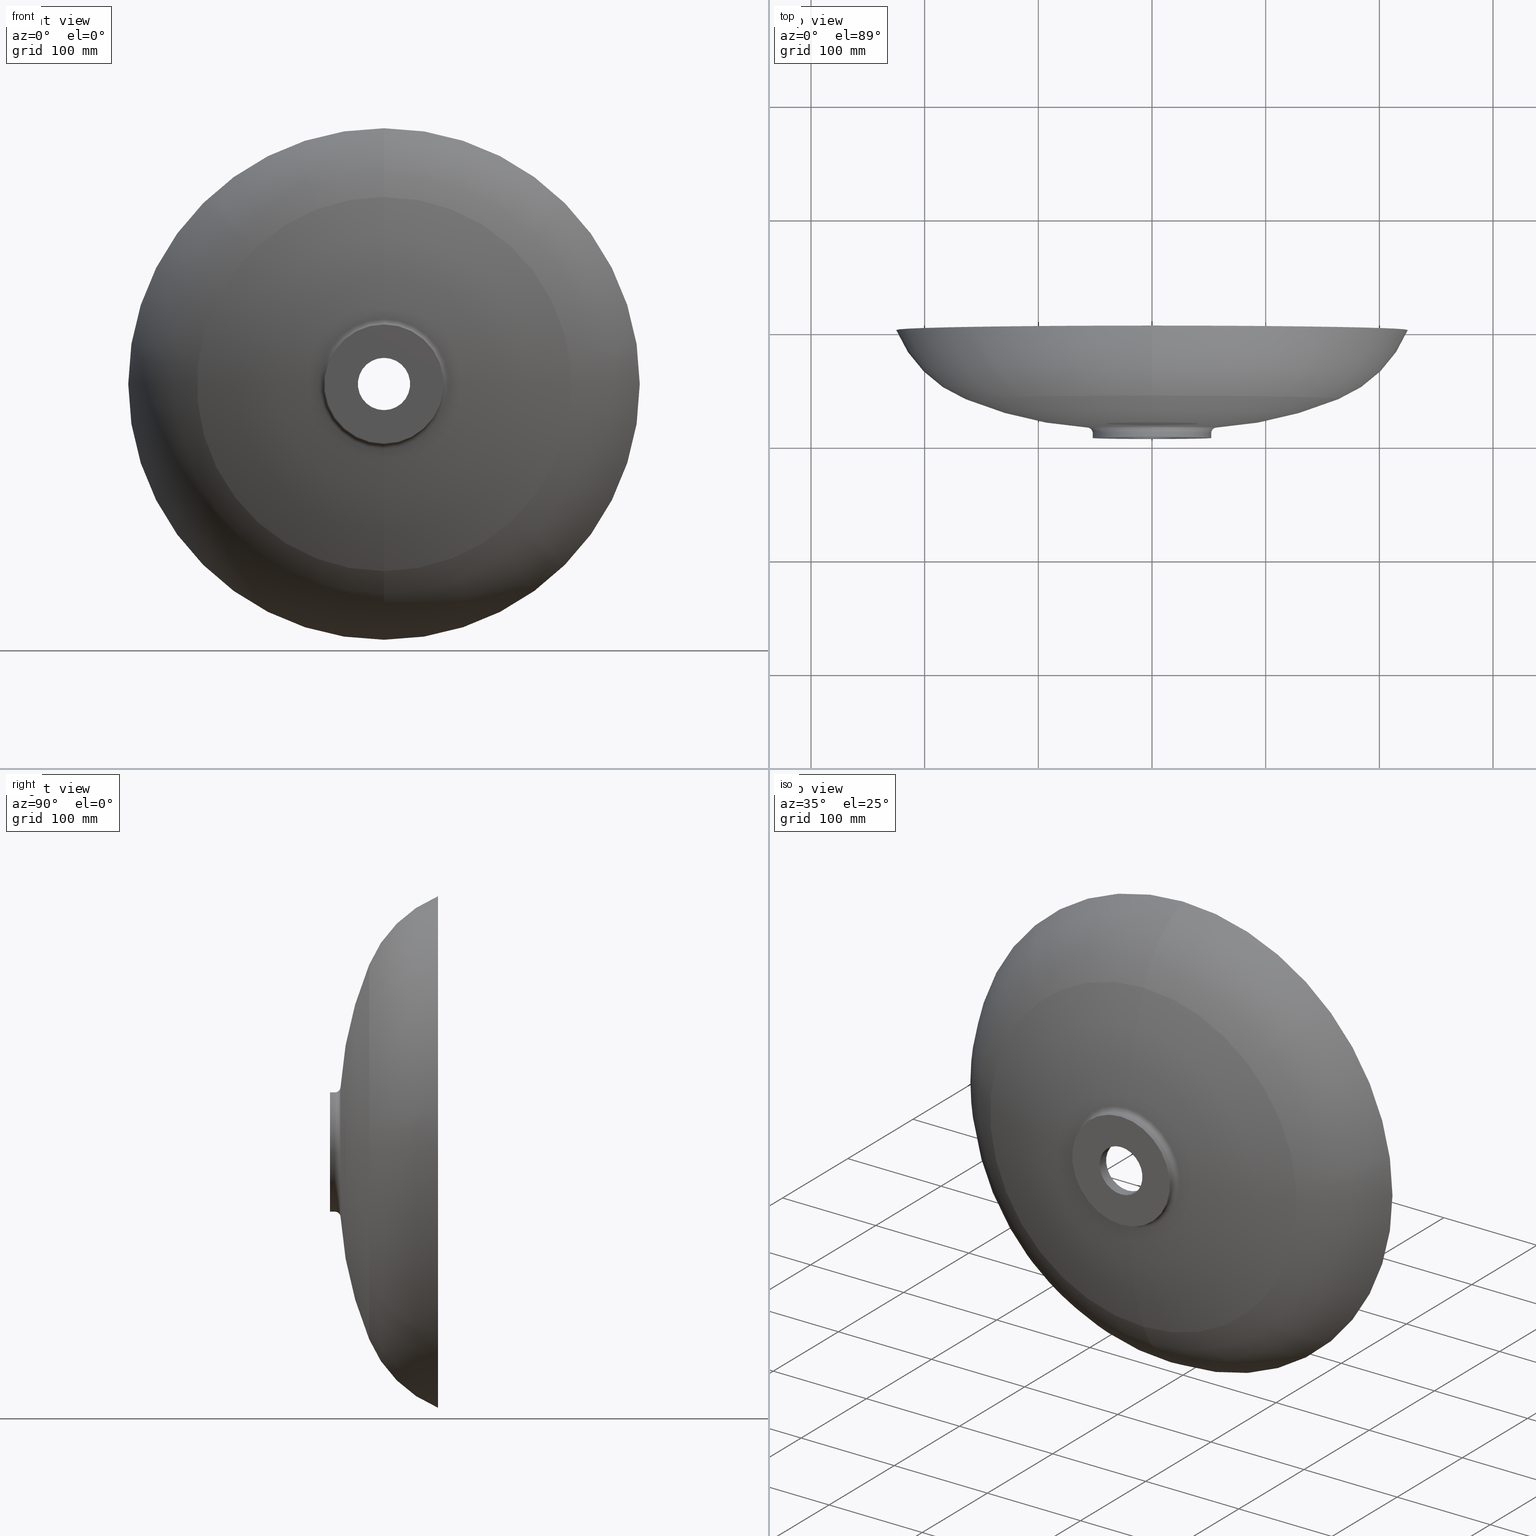
[diagram: canonical four-view strip — front | top / right | iso, engineering-drawing reading convention]
A machine part, canonical four-view strip (front | top / right | iso — engineering-drawing reading convention). The complete STEP part file that produces these views, byte-faithful:
ISO-10303-21;
HEADER;
FILE_DESCRIPTION (( 'STEP AP214' ),
    '1' );
FILE_NAME ('Z820-1SO_Egeria Soft.STEP',
    '2019-02-20T11:03:33',
    ( 'Admin' ),
    ( '' ),
    'SwSTEP 2.0',
    'SolidWorks 2019',
    '' );
FILE_SCHEMA (( 'AUTOMOTIVE_DESIGN' ));
ENDSEC;

DATA;
#1 = FACE_OUTER_BOUND ( 'NONE', #484, .T. ) ;
#2 =( NAMED_UNIT ( * ) SI_UNIT ( $, .STERADIAN. ) SOLID_ANGLE_UNIT ( ) );
#3 = FACE_BOUND ( 'NONE', #118, .T. ) ;
#4 = TOROIDAL_SURFACE ( 'NONE', #234, 121.9101096011546872, 111.4495278588973406 ) ;
#5 = AXIS2_PLACEMENT_3D ( 'NONE', #174, #145, #434 ) ;
#6 =( LENGTH_UNIT ( ) NAMED_UNIT ( * ) SI_UNIT ( .MILLI., .METRE. ) );
#7 = CARTESIAN_POINT ( 'NONE',  ( 4.268525816630462138E-14, 42.34940091105409010, -121.9101096011546872 ) ) ;
#8 = DIRECTION ( 'NONE',  ( -1.000000000000000000, 0.0000000000000000000, 0.0000000000000000000 ) ) ;
#9 = LINE ( 'NONE', #530, #44 ) ;
#10 = ADVANCED_FACE ( 'NONE', ( #444 ), #41, .F. ) ;
#11 = AXIS2_PLACEMENT_3D ( 'NONE', #491, #8, #437 ) ;
#12 = DIRECTION ( 'NONE',  ( 0.0000000000000000000, 0.0000000000000000000, 1.000000000000000000 ) ) ;
#13 = AXIS2_PLACEMENT_3D ( 'NONE', #490, #534, #459 ) ;
#14 = ORIENTED_EDGE ( 'NONE', *, *, #477, .T. ) ;
#15 = SURFACE_STYLE_USAGE ( .BOTH. , #536 ) ;
#16 = ADVANCED_FACE ( 'NONE', ( #198 ), #508, .F. ) ;
#17 = DIRECTION ( 'NONE',  ( -0.0000000000000000000, 1.000000000000000000, -0.0000000000000000000 ) ) ;
#18 = DIRECTION ( 'NONE',  ( 1.000000000000000000, 0.0000000000000000000, 1.224646799147353207E-16 ) ) ;
#19 = PRODUCT ( 'Z820-1SO_Egeria Soft', 'Z820-1SO_Egeria Soft', '', ( #139 ) ) ;
#20 = DIRECTION ( 'NONE',  ( 0.0000000000000000000, 0.0000000000000000000, 1.000000000000000000 ) ) ;
#21 = SHAPE_DEFINITION_REPRESENTATION ( #381, #215 ) ;
#22 = ADVANCED_FACE ( 'NONE', ( #495 ), #529, .T. ) ;
#23 = AXIS2_PLACEMENT_3D ( 'NONE', #127, #17, #150 ) ;
#24 = AXIS2_PLACEMENT_3D ( 'NONE', #229, #102, #388 ) ;
#25 = ORIENTED_EDGE ( 'NONE', *, *, #467, .F. ) ;
#26 =( LENGTH_UNIT ( ) NAMED_UNIT ( * ) SI_UNIT ( .MILLI., .METRE. ) );
#27 = ORIENTED_EDGE ( 'NONE', *, *, #62, .T. ) ;
#28 = VERTEX_POINT ( 'NONE', #359 ) ;
#29 = LINE ( 'NONE', #432, #39 ) ;
#30 = ORIENTED_EDGE ( 'NONE', *, *, #85, .F. ) ;
#31 = DIRECTION ( 'NONE',  ( -0.0000000000000000000, 1.000000000000000000, -0.0000000000000000000 ) ) ;
#32 = FACE_OUTER_BOUND ( 'NONE', #160, .T. ) ;
#33 = CONICAL_SURFACE ( 'NONE', #426, 23.00000000000002132, 0.8726646259971664321 ) ;
#34 = AXIS2_PLACEMENT_3D ( 'NONE', #243, #153, #219 ) ;
#35 = TOROIDAL_SURFACE ( 'NONE', #109, 34.91753592594216826, 338.2213232353086596 ) ;
#36 = FILL_AREA_STYLE_COLOUR ( '', #72 ) ;
#37 = APPLICATION_PROTOCOL_DEFINITION ( 'draft international standard', 'automotive_design', 1998, #38 ) ;
#38 = APPLICATION_CONTEXT ( 'automotive_design' ) ;
#39 = VECTOR ( 'NONE', #469, 1000.000000000000000 ) ;
#40 = CIRCLE ( 'NONE', #67, 23.00000000000002132 ) ;
#41 = CONICAL_SURFACE ( 'NONE', #341, 23.00000000000002132, 0.8726646259971664321 ) ;
#42 = CARTESIAN_POINT ( 'NONE',  ( 2.785840080681896877E-14, -90.70580832891145917, -57.50000000000002842 ) ) ;
#43 = VERTEX_POINT ( 'NONE', #368 ) ;
#44 = VECTOR ( 'NONE', #410, 1000.000000000000000 ) ;
#45 = AXIS2_PLACEMENT_3D ( 'NONE', #123, #454, #20 ) ;
#46 = ORIENTED_EDGE ( 'NONE', *, *, #346, .F. ) ;
#47 = DIRECTION ( 'NONE',  ( 0.0000000000000000000, 0.6427876096865380307, 0.7660444431189791237 ) ) ;
#48 = CARTESIAN_POINT ( 'NONE',  ( 2.135878279796443735E-14, -49.99999999999998579, 0.0000000000000000000 ) ) ;
#49 = EDGE_LOOP ( 'NONE', ( #232, #177, #95, #538 ) ) ;
#50 = FACE_OUTER_BOUND ( 'NONE', #74, .T. ) ;
#51 = AXIS2_PLACEMENT_3D ( 'NONE', #442, #216, #217 ) ;
#52 = AXIS2_PLACEMENT_3D ( 'NONE', #404, #194, #276 ) ;
#53 =( NAMED_UNIT ( * ) SI_UNIT ( $, .STERADIAN. ) SOLID_ANGLE_UNIT ( ) );
#54 = ORIENTED_EDGE ( 'NONE', *, *, #463, .F. ) ;
#55 = CARTESIAN_POINT ( 'NONE',  ( 5.658126656586371938E-14, -37.08579791896572431, -235.3796292147611666 ) ) ;
#56 = DIRECTION ( 'NONE',  ( -0.0000000000000000000, 1.000000000000000000, -0.0000000000000000000 ) ) ;
#57 = AXIS2_PLACEMENT_3D ( 'NONE', #55, #18, #292 ) ;
#58 = ORIENTED_EDGE ( 'NONE', *, *, #467, .T. ) ;
#59 = DIRECTION ( 'NONE',  ( 0.0000000000000000000, 0.0000000000000000000, 1.000000000000000000 ) ) ;
#60 = CARTESIAN_POINT ( 'NONE',  ( 2.775557561562891351E-14, 42.34940091105409010, 0.0000000000000000000 ) ) ;
#61 = LINE ( 'NONE', #254, #475 ) ;
#62 = EDGE_CURVE ( 'NONE', #230, #318, #81, .T. ) ;
#63 = AXIS2_PLACEMENT_3D ( 'NONE', #159, #116, #154 ) ;
#64 = AXIS2_PLACEMENT_3D ( 'NONE', #119, #441, #319 ) ;
#65 = ORIENTED_EDGE ( 'NONE', *, *, #528, .T. ) ;
#66 = PRESENTATION_STYLE_ASSIGNMENT (( #68 ) ) ;
#67 = AXIS2_PLACEMENT_3D ( 'NONE', #447, #90, #527 ) ;
#68 = SURFACE_STYLE_USAGE ( .BOTH. , #69 ) ;
#69 = SURFACE_SIDE_STYLE ('',( #110 ) ) ;
#70 = DIRECTION ( 'NONE',  ( -0.0000000000000000000, 1.000000000000000000, -0.0000000000000000000 ) ) ;
#71 = EDGE_CURVE ( 'NONE', #429, #230, #428, .T. ) ;
#72 = COLOUR_RGB ( '',1.000000000000000000, 1.000000000000000000, 1.000000000000000000 ) ;
#73 = ORIENTED_EDGE ( 'NONE', *, *, #80, .F. ) ;
#74 = EDGE_LOOP ( 'NONE', ( #337, #27, #389, #258 ) ) ;
#75 = ORIENTED_EDGE ( 'NONE', *, *, #455, .F. ) ;
#76 = TOROIDAL_SURFACE ( 'NONE', #474, 235.3796292147611666, 38.51094792292558111 ) ;
#77 = DIRECTION ( 'NONE',  ( 0.0000000000000000000, 0.0000000000000000000, 1.000000000000000000 ) ) ;
#78 = CARTESIAN_POINT ( 'NONE',  ( 2.135878279796443735E-14, -94.99999999999997158, 0.0000000000000000000 ) ) ;
#79 = CARTESIAN_POINT ( 'NONE',  ( 2.081668171172168513E-14, -90.70580832891145917, 57.50000000000002842 ) ) ;
#80 = EDGE_CURVE ( 'NONE', #146, #253, #40, .T. ) ;
#81 = CIRCLE ( 'NONE', #57, 38.51094792292555979 ) ;
#82 = EDGE_LOOP ( 'NONE', ( #317, #241, #115, #344 ) ) ;
#83 = ORIENTED_EDGE ( 'NONE', *, *, #343, .T. ) ;
#84 = FACE_OUTER_BOUND ( 'NONE', #323, .T. ) ;
#85 = EDGE_CURVE ( 'NONE', #257, #532, #103, .T. ) ;
#86 = CARTESIAN_POINT ( 'NONE',  ( 2.081668171172168513E-14, -49.99999999999998579, 160.2713941386855936 ) ) ;
#87 = DIRECTION ( 'NONE',  ( 0.0000000000000000000, 0.0000000000000000000, 1.000000000000000000 ) ) ;
#88 = APPLICATION_PROTOCOL_DEFINITION ( 'draft international standard', 'automotive_design', 1998, #291 ) ;
#89 = AXIS2_PLACEMENT_3D ( 'NONE', #201, #402, #218 ) ;
#90 = DIRECTION ( 'NONE',  ( -0.0000000000000000000, 1.000000000000000000, -0.0000000000000000000 ) ) ;
#91 = CARTESIAN_POINT ( 'NONE',  ( 2.775557561562891351E-14, -37.08579791896572431, 0.0000000000000000000 ) ) ;
#92 = DIRECTION ( 'NONE',  ( -0.0000000000000000000, 1.000000000000000000, -0.0000000000000000000 ) ) ;
#93 = DIRECTION ( 'NONE',  ( 0.0000000000000000000, 0.0000000000000000000, 1.000000000000000000 ) ) ;
#94 = ORIENTED_EDGE ( 'NONE', *, *, #393, .F. ) ;
#95 = ORIENTED_EDGE ( 'NONE', *, *, #360, .T. ) ;
#96 = DIRECTION ( 'NONE',  ( -0.0000000000000000000, 1.000000000000000000, -0.0000000000000000000 ) ) ;
#97 = CARTESIAN_POINT ( 'NONE',  ( 2.417547043600335207E-14, -85.00000000000001421, -23.00000000000002132 ) ) ;
#98 = DIRECTION ( 'NONE',  ( -0.0000000000000000000, 1.000000000000000000, -0.0000000000000000000 ) ) ;
#99 = DIRECTION ( 'NONE',  ( 9.381338752702744340E-17, 0.6427876096865380307, -0.7660444431189791237 ) ) ;
#100 = FILL_AREA_STYLE ('',( #36 ) ) ;
#101 = EDGE_CURVE ( 'NONE', #316, #28, #29, .T. ) ;
#102 = DIRECTION ( 'NONE',  ( -0.0000000000000000000, 1.000000000000000000, -0.0000000000000000000 ) ) ;
#103 = CIRCLE ( 'NONE', #228, 5.000000000000011546 ) ;
#104 = DIRECTION ( 'NONE',  ( -0.0000000000000000000, 1.000000000000000000, -0.0000000000000000000 ) ) ;
#105 = CARTESIAN_POINT ( 'NONE',  ( 2.753209500432569861E-14, -90.70580832891145917, -52.50000000000001421 ) ) ;
#106 = CARTESIAN_POINT ( 'NONE',  ( 2.778817849348804525E-14, -94.99999999999997158, -52.50000000000002132 ) ) ;
#107 = AXIS2_PLACEMENT_3D ( 'NONE', #205, #192, #143 ) ;
#108 = CIRCLE ( 'NONE', #384, 326.7717953764113190 ) ;
#109 = AXIS2_PLACEMENT_3D ( 'NONE', #515, #416, #498 ) ;
#110 = SURFACE_STYLE_FILL_AREA ( #100 ) ;
#111 = EDGE_LOOP ( 'NONE', ( #415, #273, #58, #401 ) ) ;
#112 = DIRECTION ( 'NONE',  ( 1.224646799147347784E-16, 0.0000000000000000000, -1.000000000000000000 ) ) ;
#113 = CARTESIAN_POINT ( 'NONE',  ( 2.775557561562891351E-14, 42.34940091105409010, 0.0000000000000000000 ) ) ;
#114 = CARTESIAN_POINT ( 'NONE',  ( 2.081668171172168513E-14, 251.7717953764113190, 0.0000000000000000000 ) ) ;
#115 = ORIENTED_EDGE ( 'NONE', *, *, #405, .T. ) ;
#116 = DIRECTION ( 'NONE',  ( -0.0000000000000000000, 1.000000000000000000, -0.0000000000000000000 ) ) ;
#117 = CARTESIAN_POINT ( 'NONE',  ( 2.135878279796443735E-14, -60.57357038483590372, 0.0000000000000000000 ) ) ;
#118 = EDGE_LOOP ( 'NONE', ( #468, #535 ) ) ;
#119 = CARTESIAN_POINT ( 'NONE',  ( 2.775557561562891351E-14, -37.08579791896572431, 235.3796292147611666 ) ) ;
#120 = DIRECTION ( 'NONE',  ( -0.0000000000000000000, 1.000000000000000000, -0.0000000000000000000 ) ) ;
#121 =( GEOMETRIC_REPRESENTATION_CONTEXT ( 3 ) GLOBAL_UNCERTAINTY_ASSIGNED_CONTEXT ( ( #352 ) ) GLOBAL_UNIT_ASSIGNED_CONTEXT ( ( #335, #227, #2 ) ) REPRESENTATION_CONTEXT ( 'NONE', 'WORKASPACE' ) );
#122 = EDGE_LOOP ( 'NONE', ( #301, #162, #374, #493 ) ) ;
#123 = CARTESIAN_POINT ( 'NONE',  ( 2.135878279796443735E-14, -15.00000000000001421, 0.0000000000000000000 ) ) ;
#124 = ORIENTED_EDGE ( 'NONE', *, *, #373, .T. ) ;
#125 = ORIENTED_EDGE ( 'NONE', *, *, #516, .F. ) ;
#126 = CARTESIAN_POINT ( 'NONE',  ( 2.081668171172168513E-14, 251.7717953764113190, 0.0000000000000000000 ) ) ;
#127 = CARTESIAN_POINT ( 'NONE',  ( 2.135878279796443735E-14, -75.00000000000001421, 0.0000000000000000000 ) ) ;
#128 = LINE ( 'NONE', #544, #185 ) ;
#129 = CIRCLE ( 'NONE', #171, 23.00000000000002132 ) ;
#130 = UNCERTAINTY_MEASURE_WITH_UNIT (LENGTH_MEASURE( 1.000000000000000082E-05 ), #6, 'distance_accuracy_value', 'NONE');
#131 = VECTOR ( 'NONE', #221, 1000.000000000000000 ) ;
#132 = FACE_OUTER_BOUND ( 'NONE', #239, .T. ) ;
#133 = CARTESIAN_POINT ( 'NONE',  ( 2.135878279796443735E-14, -94.99999999999997158, 23.00000000000002132 ) ) ;
#134 = EDGE_CURVE ( 'NONE', #183, #306, #408, .T. ) ;
#135 = CARTESIAN_POINT ( 'NONE',  ( 2.135878279796443735E-14, -85.00000000000001421, 23.00000000000002132 ) ) ;
#136 = FACE_OUTER_BOUND ( 'NONE', #122, .T. ) ;
#137 = CARTESIAN_POINT ( 'NONE',  ( 2.135878279796443735E-14, -94.99999999999997158, 52.50000000000002132 ) ) ;
#138 = AXIS2_PLACEMENT_3D ( 'NONE', #439, #245, #191 ) ;
#139 = PRODUCT_CONTEXT ( 'NONE', #38, 'mechanical' ) ;
#140 = CYLINDRICAL_SURFACE ( 'NONE', #522, 23.00000000000002132 ) ;
#141 = TOROIDAL_SURFACE ( 'NONE', #505, 34.91753592594216826, 338.2213232353086596 ) ;
#142 = CIRCLE ( 'NONE', #5, 338.2213232353086596 ) ;
#143 = DIRECTION ( 'NONE',  ( 0.0000000000000000000, 0.0000000000000000000, 1.000000000000000000 ) ) ;
#144 = ADVANCED_FACE ( 'NONE', ( #252 ), #4, .T. ) ;
#145 = DIRECTION ( 'NONE',  ( -1.000000000000000000, 0.0000000000000000000, 0.0000000000000000000 ) ) ;
#146 = VERTEX_POINT ( 'NONE', #135 ) ;
#147 = ORIENTED_EDGE ( 'NONE', *, *, #297, .T. ) ;
#148 = ORIENTED_EDGE ( 'NONE', *, *, #463, .T. ) ;
#149 = DIRECTION ( 'NONE',  ( 0.0000000000000000000, -0.0000000000000000000, -1.000000000000000000 ) ) ;
#150 = DIRECTION ( 'NONE',  ( 0.0000000000000000000, 0.0000000000000000000, 1.000000000000000000 ) ) ;
#151 = ORIENTED_EDGE ( 'NONE', *, *, #455, .T. ) ;
#152 = DIRECTION ( 'NONE',  ( 1.000000000000000000, 0.0000000000000000000, 1.224646799147353207E-16 ) ) ;
#153 = DIRECTION ( 'NONE',  ( -0.0000000000000000000, 1.000000000000000000, -0.0000000000000000000 ) ) ;
#154 = DIRECTION ( 'NONE',  ( 0.0000000000000000000, 0.0000000000000000000, 1.000000000000000000 ) ) ;
#155 = CYLINDRICAL_SURFACE ( 'NONE', #13, 23.00000000000002132 ) ;
#156 = AXIS2_PLACEMENT_3D ( 'NONE', #438, #369, #345 ) ;
#157 = ORIENTED_EDGE ( 'NONE', *, *, #486, .F. ) ;
#158 = DIRECTION ( 'NONE',  ( 0.0000000000000000000, 0.0000000000000000000, 1.000000000000000000 ) ) ;
#159 = CARTESIAN_POINT ( 'NONE',  ( 2.775557561562891351E-14, -37.08579791896572431, 0.0000000000000000000 ) ) ;
#160 = EDGE_LOOP ( 'NONE', ( #309, #325, #271, #25 ) ) ;
#161 = AXIS2_PLACEMENT_3D ( 'NONE', #206, #296, #166 ) ;
#162 = ORIENTED_EDGE ( 'NONE', *, *, #134, .F. ) ;
#163 = CARTESIAN_POINT ( 'NONE',  ( 2.775557561562891351E-14, 42.34940091105409010, 0.0000000000000000000 ) ) ;
#164 = EDGE_LOOP ( 'NONE', ( #30, #361, #14, #307 ) ) ;
#165 = LINE ( 'NONE', #214, #131 ) ;
#166 = DIRECTION ( 'NONE',  ( 0.0000000000000000000, 0.0000000000000000000, 1.000000000000000000 ) ) ;
#167 = DIRECTION ( 'NONE',  ( -1.000000000000000000, 0.0000000000000000000, 0.0000000000000000000 ) ) ;
#168 = ADVANCED_FACE ( 'NONE', ( #403 ), #155, .F. ) ;
#169 = CYLINDRICAL_SURFACE ( 'NONE', #350, 52.50000000000002132 ) ;
#170 = CIRCLE ( 'NONE', #107, 23.00000000000002132 ) ;
#171 = AXIS2_PLACEMENT_3D ( 'NONE', #494, #453, #349 ) ;
#172 = AXIS2_PLACEMENT_3D ( 'NONE', #163, #92, #531 ) ;
#173 = ORIENTED_EDGE ( 'NONE', *, *, #473, .F. ) ;
#174 = CARTESIAN_POINT ( 'NONE',  ( 2.081668171172168513E-14, 251.7717953764113190, 34.91753592594216826 ) ) ;
#175 = ADVANCED_FACE ( 'NONE', ( #249 ), #141, .T. ) ;
#176 = CARTESIAN_POINT ( 'NONE',  ( 2.135878279796443735E-14, 157.3310138647779866, 0.0000000000000000000 ) ) ;
#177 = ORIENTED_EDGE ( 'NONE', *, *, #500, .T. ) ;
#178 = CARTESIAN_POINT ( 'NONE',  ( 2.775557561562891351E-14, -3.469446951953614189E-15, 225.0000000000000284 ) ) ;
#179 = FACE_OUTER_BOUND ( 'NONE', #49, .T. ) ;
#180 = PRESENTATION_LAYER_ASSIGNMENT (  '', '', ( #283 ) ) ;
#181 = DIRECTION ( 'NONE',  ( -0.0000000000000000000, 1.000000000000000000, -0.0000000000000000000 ) ) ;
#182 = FACE_OUTER_BOUND ( 'NONE', #347, .T. ) ;
#183 = VERTEX_POINT ( 'NONE', #86 ) ;
#184 = DIRECTION ( 'NONE',  ( 0.0000000000000000000, 0.0000000000000000000, 1.000000000000000000 ) ) ;
#185 = VECTOR ( 'NONE', #47, 1000.000000000000000 ) ;
#186 = AXIS2_PLACEMENT_3D ( 'NONE', #188, #56, #158 ) ;
#187 = DIRECTION ( 'NONE',  ( 0.0000000000000000000, 0.0000000000000000000, 1.000000000000000000 ) ) ;
#188 = CARTESIAN_POINT ( 'NONE',  ( 2.135878279796443735E-14, 0.0000000000000000000, 0.0000000000000000000 ) ) ;
#189 = DIRECTION ( 'NONE',  ( 1.000000000000000000, 0.0000000000000000000, 1.224646799147353207E-16 ) ) ;
#190 = CARTESIAN_POINT ( 'NONE',  ( 2.135878279796443735E-14, -85.00000000000001421, 0.0000000000000000000 ) ) ;
#191 = DIRECTION ( 'NONE',  ( 1.000000000000000000, 0.0000000000000000000, 0.0000000000000000000 ) ) ;
#192 = DIRECTION ( 'NONE',  ( -0.0000000000000000000, 1.000000000000000000, -0.0000000000000000000 ) ) ;
#193 = VERTEX_POINT ( 'NONE', #106 ) ;
#194 = DIRECTION ( 'NONE',  ( -1.000000000000000000, 0.0000000000000000000, 0.0000000000000000000 ) ) ;
#195 = PRODUCT_DEFINITION_CONTEXT ( 'detailed design', #291, 'design' ) ;
#196 = FACE_OUTER_BOUND ( 'NONE', #82, .T. ) ;
#197 = ADVANCED_FACE ( 'NONE', ( #196 ), #514, .F. ) ;
#198 = FACE_OUTER_BOUND ( 'NONE', #164, .T. ) ;
#199 = CARTESIAN_POINT ( 'NONE',  ( 2.135878279796443735E-14, -85.71664273050069482, 0.0000000000000000000 ) ) ;
#200 = CARTESIAN_POINT ( 'NONE',  ( 2.081668171172168513E-14, 251.7717953764113190, 0.0000000000000000000 ) ) ;
#201 = CARTESIAN_POINT ( 'NONE',  ( 2.775557561562891351E-14, 42.34940091105409010, 0.0000000000000000000 ) ) ;
#202 = ORIENTED_EDGE ( 'NONE', *, *, #399, .F. ) ;
#203 = AXIS2_PLACEMENT_3D ( 'NONE', #383, #448, #520 ) ;
#204 = CARTESIAN_POINT ( 'NONE',  ( 3.440013347177337835E-14, -85.71664273050069482, -57.17102183714597885 ) ) ;
#205 = CARTESIAN_POINT ( 'NONE',  ( 2.135878279796443735E-14, -94.99999999999997158, 0.0000000000000000000 ) ) ;
#206 = CARTESIAN_POINT ( 'NONE',  ( 2.135878279796443735E-14, -85.71664273050069482, 0.0000000000000000000 ) ) ;
#207 = CARTESIAN_POINT ( 'NONE',  ( 2.135878279796443735E-14, -75.00000000000001421, 0.0000000000000000000 ) ) ;
#208 = ADVANCED_FACE ( 'NONE', ( #336 ), #259, .F. ) ;
#209 = DIRECTION ( 'NONE',  ( -0.0000000000000000000, 1.000000000000000000, -0.0000000000000000000 ) ) ;
#210 = AXIS2_PLACEMENT_3D ( 'NONE', #524, #209, #418 ) ;
#211 = DIRECTION ( 'NONE',  ( 0.0000000000000000000, 0.0000000000000000000, 1.000000000000000000 ) ) ;
#212 = ORIENTED_EDGE ( 'NONE', *, *, #324, .F. ) ;
#213 = DIRECTION ( 'NONE',  ( -0.0000000000000000000, 1.000000000000000000, -0.0000000000000000000 ) ) ;
#214 = CARTESIAN_POINT ( 'NONE',  ( 2.417547043600335207E-14, 157.3310138647779866, -23.00000000000002132 ) ) ;
#215 = ADVANCED_BREP_SHAPE_REPRESENTATION ( 'Z820-1SO_Egeria Soft', ( #462, #138 ), #433 ) ;
#216 = DIRECTION ( 'NONE',  ( -0.0000000000000000000, 1.000000000000000000, -0.0000000000000000000 ) ) ;
#217 = DIRECTION ( 'NONE',  ( 0.0000000000000000000, 0.0000000000000000000, 1.000000000000000000 ) ) ;
#218 = DIRECTION ( 'NONE',  ( 0.0000000000000000000, 0.0000000000000000000, 1.000000000000000000 ) ) ;
#219 = DIRECTION ( 'NONE',  ( 0.0000000000000000000, 0.0000000000000000000, 1.000000000000000000 ) ) ;
#220 = CARTESIAN_POINT ( 'NONE',  ( 2.135878279796443735E-14, -60.57357038483590372, 164.6635800988411518 ) ) ;
#221 = DIRECTION ( 'NONE',  ( -0.0000000000000000000, 1.000000000000000000, -0.0000000000000000000 ) ) ;
#222 = AXIS2_PLACEMENT_3D ( 'NONE', #78, #98, #425 ) ;
#223 = CIRCLE ( 'NONE', #51, 23.00000000000002132 ) ;
#224 = DIRECTION ( 'NONE',  ( 0.0000000000000000000, 0.0000000000000000000, 1.000000000000000000 ) ) ;
#225 = DIRECTION ( 'NONE',  ( 0.0000000000000000000, 0.0000000000000000000, 1.000000000000000000 ) ) ;
#226 = ADVANCED_FACE ( 'NONE', ( #460 ), #33, .F. ) ;
#227 =( NAMED_UNIT ( * ) PLANE_ANGLE_UNIT ( ) SI_UNIT ( $, .RADIAN. ) );
#228 = AXIS2_PLACEMENT_3D ( 'NONE', #42, #482, #112 ) ;
#229 = CARTESIAN_POINT ( 'NONE',  ( 2.081668171172168513E-14, -90.70580832891145917, 0.0000000000000000000 ) ) ;
#230 = VERTEX_POINT ( 'NONE', #235 ) ;
#231 = EDGE_CURVE ( 'NONE', #321, #275, #170, .T. ) ;
#232 = ORIENTED_EDGE ( 'NONE', *, *, #71, .F. ) ;
#233 = CIRCLE ( 'NONE', #407, 5.000000000000011546 ) ;
#234 = AXIS2_PLACEMENT_3D ( 'NONE', #113, #464, #238 ) ;
#235 = CARTESIAN_POINT ( 'NONE',  ( 5.531012859644435971E-14, -3.469446951953614189E-15, -225.0000000000000284 ) ) ;
#236 = DIRECTION ( 'NONE',  ( -1.000000000000000000, 0.0000000000000000000, 0.0000000000000000000 ) ) ;
#237 = EDGE_CURVE ( 'NONE', #275, #321, #223, .T. ) ;
#238 = DIRECTION ( 'NONE',  ( 0.0000000000000000000, 0.0000000000000000000, 1.000000000000000000 ) ) ;
#239 = EDGE_LOOP ( 'NONE', ( #308, #312, #419, #157 ) ) ;
#240 = DIRECTION ( 'NONE',  ( 1.224646799147353454E-16, 0.0000000000000000000, -1.000000000000000000 ) ) ;
#241 = ORIENTED_EDGE ( 'NONE', *, *, #85, .T. ) ;
#242 = DIRECTION ( 'NONE',  ( -0.0000000000000000000, 1.000000000000000000, -0.0000000000000000000 ) ) ;
#243 = CARTESIAN_POINT ( 'NONE',  ( 2.135878279796443735E-14, -49.99999999999998579, 0.0000000000000000000 ) ) ;
#244 = PRESENTATION_LAYER_ASSIGNMENT (  '', '', ( #480 ) ) ;
#245 = DIRECTION ( 'NONE',  ( 0.0000000000000000000, 0.0000000000000000000, 1.000000000000000000 ) ) ;
#246 = EDGE_LOOP ( 'NONE', ( #125, #65, #250, #94 ) ) ;
#247 = DIRECTION ( 'NONE',  ( 0.0000000000000000000, 0.0000000000000000000, 1.000000000000000000 ) ) ;
#248 = DIRECTION ( 'NONE',  ( -0.0000000000000000000, 1.000000000000000000, -0.0000000000000000000 ) ) ;
#249 = FACE_OUTER_BOUND ( 'NONE', #406, .T. ) ;
#250 = ORIENTED_EDGE ( 'NONE', *, *, #545, .T. ) ;
#251 = EDGE_CURVE ( 'NONE', #275, #253, #165, .T. ) ;
#252 = FACE_OUTER_BOUND ( 'NONE', #440, .T. ) ;
#253 = VERTEX_POINT ( 'NONE', #478 ) ;
#254 = CARTESIAN_POINT ( 'NONE',  ( 2.778817849348804525E-14, 157.3310138647779866, -52.50000000000002132 ) ) ;
#255 = VERTEX_POINT ( 'NONE', #518 ) ;
#256 = SURFACE_STYLE_FILL_AREA ( #278 ) ;
#257 = VERTEX_POINT ( 'NONE', #204 ) ;
#258 = ORIENTED_EDGE ( 'NONE', *, *, #378, .F. ) ;
#259 = TOROIDAL_SURFACE ( 'NONE', #543, 121.9101096011546872, 100.0000000000000284 ) ;
#260 = CARTESIAN_POINT ( 'NONE',  ( -52.50000000000000000, -95.00000000000000000, 0.0000000000000000000 ) ) ;
#261 = DIRECTION ( 'NONE',  ( -0.0000000000000000000, 1.000000000000000000, -0.0000000000000000000 ) ) ;
#262 = DIRECTION ( 'NONE',  ( -0.0000000000000000000, 1.000000000000000000, -0.0000000000000000000 ) ) ;
#263 = EDGE_CURVE ( 'NONE', #43, #492, #481, .T. ) ;
#264 = DIRECTION ( 'NONE',  ( -0.0000000000000000000, 1.000000000000000000, -0.0000000000000000000 ) ) ;
#265 = ORIENTED_EDGE ( 'NONE', *, *, #486, .T. ) ;
#266 = CIRCLE ( 'NONE', #451, 164.6635800988411518 ) ;
#267 = CIRCLE ( 'NONE', #23, 34.91753592594216826 ) ;
#268 = AXIS2_PLACEMENT_3D ( 'NONE', #200, #248, #499 ) ;
#269 = ORIENTED_EDGE ( 'NONE', *, *, #528, .F. ) ;
#270 = ADVANCED_FACE ( 'NONE', ( #354 ), #461, .F. ) ;
#271 = ORIENTED_EDGE ( 'NONE', *, *, #516, .T. ) ;
#272 = ORIENTED_EDGE ( 'NONE', *, *, #540, .T. ) ;
#273 = ORIENTED_EDGE ( 'NONE', *, *, #231, .F. ) ;
#274 = DIRECTION ( 'NONE',  ( 0.0000000000000000000, 0.0000000000000000000, 1.000000000000000000 ) ) ;
#275 = VERTEX_POINT ( 'NONE', #284 ) ;
#276 = DIRECTION ( 'NONE',  ( 0.0000000000000000000, 0.0000000000000000000, 1.000000000000000000 ) ) ;
#277 = TOROIDAL_SURFACE ( 'NONE', #294, 34.91753592594216826, 326.7717953764113190 ) ;
#278 = FILL_AREA_STYLE ('',( #314 ) ) ;
#279 = PLANE ( 'NONE',  #351 ) ;
#280 = FACE_OUTER_BOUND ( 'NONE', #546, .T. ) ;
#281 = ADVANCED_FACE ( 'NONE', ( #182 ), #169, .T. ) ;
#282 = DIRECTION ( 'NONE',  ( 0.0000000000000000000, -1.000000000000000000, 0.0000000000000000000 ) ) ;
#283 = STYLED_ITEM ( 'NONE', ( #66 ), #215 ) ;
#284 = CARTESIAN_POINT ( 'NONE',  ( 2.417547043600335207E-14, -94.99999999999997158, -23.00000000000002132 ) ) ;
#285 = CIRCLE ( 'NONE', #161, 57.17102183714597885 ) ;
#286 = CIRCLE ( 'NONE', #503, 52.50000000000001421 ) ;
#287 = ADVANCED_FACE ( 'NONE', ( #50 ), #293, .T. ) ;
#288 = ORIENTED_EDGE ( 'NONE', *, *, #263, .T. ) ;
#289 = EDGE_CURVE ( 'NONE', #255, #318, #398, .T. ) ;
#290 =( NAMED_UNIT ( * ) PLANE_ANGLE_UNIT ( ) SI_UNIT ( $, .RADIAN. ) );
#291 = APPLICATION_CONTEXT ( 'automotive_design' ) ;
#292 = DIRECTION ( 'NONE',  ( 1.224646799147352714E-16, 0.0000000000000000000, -1.000000000000000000 ) ) ;
#293 = TOROIDAL_SURFACE ( 'NONE', #63, 235.3796292147611666, 38.51094792292558111 ) ;
#294 = AXIS2_PLACEMENT_3D ( 'NONE', #126, #120, #93 ) ;
#295 = ORIENTED_EDGE ( 'NONE', *, *, #483, .F. ) ;
#296 = DIRECTION ( 'NONE',  ( -0.0000000000000000000, 1.000000000000000000, -0.0000000000000000000 ) ) ;
#297 = EDGE_CURVE ( 'NONE', #377, #257, #285, .T. ) ;
#298 =( NAMED_UNIT ( * ) SI_UNIT ( $, .STERADIAN. ) SOLID_ANGLE_UNIT ( ) );
#299 = CARTESIAN_POINT ( 'NONE',  ( 2.135878279796443735E-14, 157.3310138647779866, 0.0000000000000000000 ) ) ;
#300 = ORIENTED_EDGE ( 'NONE', *, *, #367, .T. ) ;
#301 = ORIENTED_EDGE ( 'NONE', *, *, #526, .F. ) ;
#302 = ORIENTED_EDGE ( 'NONE', *, *, #422, .F. ) ;
#303 = CIRCLE ( 'NONE', #392, 57.17102183714597885 ) ;
#304 = EDGE_CURVE ( 'NONE', #230, #472, #435, .T. ) ;
#305 = AXIS2_PLACEMENT_3D ( 'NONE', #48, #330, #87 ) ;
#306 = VERTEX_POINT ( 'NONE', #465 ) ;
#307 = ORIENTED_EDGE ( 'NONE', *, *, #324, .T. ) ;
#308 = ORIENTED_EDGE ( 'NONE', *, *, #545, .F. ) ;
#309 = ORIENTED_EDGE ( 'NONE', *, *, #237, .F. ) ;
#310 = ORIENTED_EDGE ( 'NONE', *, *, #540, .F. ) ;
#311 = EDGE_LOOP ( 'NONE', ( #75, #272, #523, #322 ) ) ;
#312 = ORIENTED_EDGE ( 'NONE', *, *, #473, .T. ) ;
#313 = ADVANCED_FACE ( 'NONE', ( #136 ), #371, .F. ) ;
#314 = FILL_AREA_STYLE_COLOUR ( '', #436 ) ;
#315 = DIRECTION ( 'NONE',  ( 1.224646799147353207E-16, 0.0000000000000000000, -1.000000000000000000 ) ) ;
#316 = VERTEX_POINT ( 'NONE', #137 ) ;
#317 = ORIENTED_EDGE ( 'NONE', *, *, #386, .F. ) ;
#318 = VERTEX_POINT ( 'NONE', #382 ) ;
#319 = DIRECTION ( 'NONE',  ( 0.0000000000000000000, 0.0000000000000000000, 1.000000000000000000 ) ) ;
#320 = ADVANCED_FACE ( 'NONE', ( #32 ), #140, .F. ) ;
#321 = VERTEX_POINT ( 'NONE', #133 ) ;
#322 = ORIENTED_EDGE ( 'NONE', *, *, #405, .F. ) ;
#323 = EDGE_LOOP ( 'NONE', ( #423, #355, #148, #348 ) ) ;
#324 = EDGE_CURVE ( 'NONE', #28, #532, #286, .T. ) ;
#325 = ORIENTED_EDGE ( 'NONE', *, *, #251, .T. ) ;
#326 = AXIS2_PLACEMENT_3D ( 'NONE', #525, #167, #12 ) ;
#327 = CIRCLE ( 'NONE', #450, 164.6635800988411518 ) ;
#328 = CARTESIAN_POINT ( 'NONE',  ( 2.081668171172168513E-14, -90.70580832891145917, 0.0000000000000000000 ) ) ;
#329 = CARTESIAN_POINT ( 'NONE',  ( 2.135878279796443735E-14, -85.00000000000001421, 0.0000000000000000000 ) ) ;
#330 = DIRECTION ( 'NONE',  ( -0.0000000000000000000, 1.000000000000000000, -0.0000000000000000000 ) ) ;
#331 =( GEOMETRIC_REPRESENTATION_CONTEXT ( 3 ) GLOBAL_UNCERTAINTY_ASSIGNED_CONTEXT ( ( #541 ) ) GLOBAL_UNIT_ASSIGNED_CONTEXT ( ( #26, #290, #298 ) ) REPRESENTATION_CONTEXT ( 'NONE', 'WORKASPACE' ) );
#332 = DIRECTION ( 'NONE',  ( 0.0000000000000000000, 0.0000000000000000000, 1.000000000000000000 ) ) ;
#333 = ORIENTED_EDGE ( 'NONE', *, *, #360, .F. ) ;
#334 = ADVANCED_FACE ( 'NONE', ( #84 ), #35, .T. ) ;
#335 =( LENGTH_UNIT ( ) NAMED_UNIT ( * ) SI_UNIT ( .MILLI., .METRE. ) );
#336 = FACE_OUTER_BOUND ( 'NONE', #339, .T. ) ;
#337 = ORIENTED_EDGE ( 'NONE', *, *, #422, .T. ) ;
#338 = CIRCLE ( 'NONE', #156, 338.2213232353086596 ) ;
#339 = EDGE_LOOP ( 'NONE', ( #202, #456, #300, #295 ) ) ;
#340 = DIRECTION ( 'NONE',  ( 0.0000000000000000000, 0.0000000000000000000, 1.000000000000000000 ) ) ;
#341 = AXIS2_PLACEMENT_3D ( 'NONE', #329, #356, #225 ) ;
#342 = ORIENTED_EDGE ( 'NONE', *, *, #62, .F. ) ;
#343 = EDGE_CURVE ( 'NONE', #316, #193, #353, .T. ) ;
#344 = ORIENTED_EDGE ( 'NONE', *, *, #477, .F. ) ;
#345 = DIRECTION ( 'NONE',  ( 1.224646799147352961E-16, 0.0000000000000000000, -1.000000000000000000 ) ) ;
#346 = EDGE_CURVE ( 'NONE', #357, #429, #266, .T. ) ;
#347 = EDGE_LOOP ( 'NONE', ( #83, #151, #212, #502 ) ) ;
#348 = ORIENTED_EDGE ( 'NONE', *, *, #500, .F. ) ;
#349 = DIRECTION ( 'NONE',  ( 0.0000000000000000000, 0.0000000000000000000, 1.000000000000000000 ) ) ;
#350 = AXIS2_PLACEMENT_3D ( 'NONE', #176, #96, #77 ) ;
#351 = AXIS2_PLACEMENT_3D ( 'NONE', #260, #282, #149 ) ;
#352 = UNCERTAINTY_MEASURE_WITH_UNIT (LENGTH_MEASURE( 1.000000000000000082E-05 ), #335, 'distance_accuracy_value', 'NONE');
#353 = CIRCLE ( 'NONE', #385, 52.50000000000002132 ) ;
#354 = FACE_OUTER_BOUND ( 'NONE', #358, .T. ) ;
#355 = ORIENTED_EDGE ( 'NONE', *, *, #386, .T. ) ;
#356 = DIRECTION ( 'NONE',  ( -0.0000000000000000000, 1.000000000000000000, -0.0000000000000000000 ) ) ;
#357 = VERTEX_POINT ( 'NONE', #220 ) ;
#358 = EDGE_LOOP ( 'NONE', ( #173, #396, #265, #412 ) ) ;
#359 = CARTESIAN_POINT ( 'NONE',  ( 2.135878279796443735E-14, -90.70580832891145917, 52.50000000000001421 ) ) ;
#360 = EDGE_CURVE ( 'NONE', #357, #472, #365, .T. ) ;
#361 = ORIENTED_EDGE ( 'NONE', *, *, #297, .F. ) ;
#362 = DIRECTION ( 'NONE',  ( -0.0000000000000000000, 1.000000000000000000, -0.0000000000000000000 ) ) ;
#363 = ORIENTED_EDGE ( 'NONE', *, *, #71, .T. ) ;
#364 = MECHANICAL_DESIGN_GEOMETRIC_PRESENTATION_REPRESENTATION (  '', ( #480 ), #121 ) ;
#365 = CIRCLE ( 'NONE', #326, 111.4495278588973264 ) ;
#366 = ORIENTED_EDGE ( 'NONE', *, *, #304, .T. ) ;
#367 = EDGE_CURVE ( 'NONE', #318, #255, #489, .T. ) ;
#368 = CARTESIAN_POINT ( 'NONE',  ( 2.135878279796443735E-14, -75.00000000000001421, 34.91753592594216826 ) ) ;
#369 = DIRECTION ( 'NONE',  ( 1.000000000000000000, 0.0000000000000000000, 1.224646799147353207E-16 ) ) ;
#370 = ADVANCED_FACE ( 'NONE', ( #1 ), #76, .T. ) ;
#371 = TOROIDAL_SURFACE ( 'NONE', #172, 121.9101096011546872, 100.0000000000000284 ) ;
#372 = AXIS2_PLACEMENT_3D ( 'NONE', #479, #362, #184 ) ;
#373 = EDGE_CURVE ( 'NONE', #257, #429, #338, .T. ) ;
#374 = ORIENTED_EDGE ( 'NONE', *, *, #483, .T. ) ;
#375 = CARTESIAN_POINT ( 'NONE',  ( 2.509284657230346489E-14, 251.7717953764113190, -34.91753592594216826 ) ) ;
#376 = CARTESIAN_POINT ( 'NONE',  ( 2.135878279796443735E-14, -15.00000000000001421, 0.0000000000000000000 ) ) ;
#377 = VERTEX_POINT ( 'NONE', #449 ) ;
#378 = EDGE_CURVE ( 'NONE', #472, #255, #533, .T. ) ;
#379 = DIRECTION ( 'NONE',  ( -0.0000000000000000000, 1.000000000000000000, -0.0000000000000000000 ) ) ;
#380 = CLOSED_SHELL ( 'NONE', ( #10, #320, #281, #197, #175, #144, #287, #208, #542, #270, #313, #370, #452, #334, #16, #22, #445, #168, #226 ) ) ;
#381 = PRODUCT_DEFINITION_SHAPE ( 'NONE', 'NONE',  #390 ) ;
#382 = CARTESIAN_POINT ( 'NONE',  ( 5.271768420044853565E-14, -15.00000000000001421, -203.8310850295710281 ) ) ;
#383 = CARTESIAN_POINT ( 'NONE',  ( 2.135878279796443735E-14, 157.3310138647779866, 0.0000000000000000000 ) ) ;
#384 = AXIS2_PLACEMENT_3D ( 'NONE', #375, #189, #315 ) ;
#385 = AXIS2_PLACEMENT_3D ( 'NONE', #510, #262, #513 ) ;
#386 = EDGE_CURVE ( 'NONE', #257, #377, #303, .T. ) ;
#387 = DIRECTION ( 'NONE',  ( 0.0000000000000000000, 0.0000000000000000000, 1.000000000000000000 ) ) ;
#388 = DIRECTION ( 'NONE',  ( 0.0000000000000000000, 0.0000000000000000000, 1.000000000000000000 ) ) ;
#389 = ORIENTED_EDGE ( 'NONE', *, *, #289, .F. ) ;
#390 = PRODUCT_DEFINITION ( 'UNKNOWN', '', #517, #195 ) ;
#391 = DIRECTION ( 'NONE',  ( 0.0000000000000000000, 0.0000000000000000000, 1.000000000000000000 ) ) ;
#392 = AXIS2_PLACEMENT_3D ( 'NONE', #199, #181, #247 ) ;
#393 = EDGE_CURVE ( 'NONE', #146, #43, #128, .T. ) ;
#394 = AXIS2_PLACEMENT_3D ( 'NONE', #411, #420, #417 ) ;
#395 = MECHANICAL_DESIGN_GEOMETRIC_PRESENTATION_REPRESENTATION (  '', ( #283 ), #331 ) ;
#396 = ORIENTED_EDGE ( 'NONE', *, *, #263, .F. ) ;
#397 = CIRCLE ( 'NONE', #372, 225.0000000000000284 ) ;
#398 = CIRCLE ( 'NONE', #487, 203.8310850295709997 ) ;
#399 = EDGE_CURVE ( 'NONE', #306, #183, #497, .T. ) ;
#400 = LINE ( 'NONE', #97, #430 ) ;
#401 = ORIENTED_EDGE ( 'NONE', *, *, #80, .T. ) ;
#402 = DIRECTION ( 'NONE',  ( -0.0000000000000000000, 1.000000000000000000, -0.0000000000000000000 ) ) ;
#403 = FACE_OUTER_BOUND ( 'NONE', #111, .T. ) ;
#404 = CARTESIAN_POINT ( 'NONE',  ( 2.081668171172168513E-14, 251.7717953764113190, 34.91753592594216826 ) ) ;
#405 = EDGE_CURVE ( 'NONE', #532, #28, #504, .T. ) ;
#406 = EDGE_LOOP ( 'NONE', ( #147, #124, #46, #54 ) ) ;
#407 = AXIS2_PLACEMENT_3D ( 'NONE', #79, #236, #59 ) ;
#408 = CIRCLE ( 'NONE', #305, 160.2713941386856220 ) ;
#409 = CARTESIAN_POINT ( 'NONE',  ( 5.161558842124611715E-14, -60.57357038483590372, -164.6635800988411518 ) ) ;
#410 = DIRECTION ( 'NONE',  ( -0.0000000000000000000, 1.000000000000000000, -0.0000000000000000000 ) ) ;
#411 = CARTESIAN_POINT ( 'NONE',  ( 4.268525816630462138E-14, 42.34940091105409010, -121.9101096011546872 ) ) ;
#412 = ORIENTED_EDGE ( 'NONE', *, *, #134, .T. ) ;
#413 =( NAMED_UNIT ( * ) PLANE_ANGLE_UNIT ( ) SI_UNIT ( $, .RADIAN. ) );
#414 = CIRCLE ( 'NONE', #11, 100.0000000000000142 ) ;
#415 = ORIENTED_EDGE ( 'NONE', *, *, #251, .F. ) ;
#416 = DIRECTION ( 'NONE',  ( -0.0000000000000000000, 1.000000000000000000, -0.0000000000000000000 ) ) ;
#417 = DIRECTION ( 'NONE',  ( 1.224646799147353700E-16, 0.0000000000000000000, -1.000000000000000000 ) ) ;
#418 = DIRECTION ( 'NONE',  ( 0.0000000000000000000, 0.0000000000000000000, 1.000000000000000000 ) ) ;
#419 = ORIENTED_EDGE ( 'NONE', *, *, #399, .T. ) ;
#420 = DIRECTION ( 'NONE',  ( 1.000000000000000000, 0.0000000000000000000, 1.224646799147353207E-16 ) ) ;
#421 = DIRECTION ( 'NONE',  ( -0.0000000000000000000, 1.000000000000000000, -0.0000000000000000000 ) ) ;
#422 = EDGE_CURVE ( 'NONE', #472, #230, #397, .T. ) ;
#423 = ORIENTED_EDGE ( 'NONE', *, *, #373, .F. ) ;
#424 = EDGE_LOOP ( 'NONE', ( #269, #73, #470, #288 ) ) ;
#425 = DIRECTION ( 'NONE',  ( 0.0000000000000000000, 0.0000000000000000000, 1.000000000000000000 ) ) ;
#426 = AXIS2_PLACEMENT_3D ( 'NONE', #190, #31, #387 ) ;
#427 = CIRCLE ( 'NONE', #222, 52.50000000000002132 ) ;
#428 = CIRCLE ( 'NONE', #394, 111.4495278588973264 ) ;
#429 = VERTEX_POINT ( 'NONE', #409 ) ;
#430 = VECTOR ( 'NONE', #99, 1000.000000000000000 ) ;
#431 = DIRECTION ( 'NONE',  ( -0.0000000000000000000, 1.000000000000000000, -0.0000000000000000000 ) ) ;
#432 = CARTESIAN_POINT ( 'NONE',  ( 2.135878279796443735E-14, 157.3310138647779866, 52.50000000000002132 ) ) ;
#433 =( GEOMETRIC_REPRESENTATION_CONTEXT ( 3 ) GLOBAL_UNCERTAINTY_ASSIGNED_CONTEXT ( ( #130 ) ) GLOBAL_UNIT_ASSIGNED_CONTEXT ( ( #6, #413, #53 ) ) REPRESENTATION_CONTEXT ( 'NONE', 'WORKASPACE' ) );
#434 = DIRECTION ( 'NONE',  ( 0.0000000000000000000, 0.0000000000000000000, 1.000000000000000000 ) ) ;
#435 = CIRCLE ( 'NONE', #186, 225.0000000000000284 ) ;
#436 = COLOUR_RGB ( '',1.000000000000000000, 1.000000000000000000, 1.000000000000000000 ) ;
#437 = DIRECTION ( 'NONE',  ( 0.0000000000000000000, 0.0000000000000000000, 1.000000000000000000 ) ) ;
#438 = CARTESIAN_POINT ( 'NONE',  ( 2.509284657230346489E-14, 251.7717953764113190, -34.91753592594216826 ) ) ;
#439 = CARTESIAN_POINT ( 'NONE',  ( 0.0000000000000000000, 0.0000000000000000000, 0.0000000000000000000 ) ) ;
#440 = EDGE_LOOP ( 'NONE', ( #488, #363, #302, #333 ) ) ;
#441 = DIRECTION ( 'NONE',  ( -1.000000000000000000, 0.0000000000000000000, 0.0000000000000000000 ) ) ;
#442 = CARTESIAN_POINT ( 'NONE',  ( 2.135878279796443735E-14, -94.99999999999997158, 0.0000000000000000000 ) ) ;
#443 = AXIS2_PLACEMENT_3D ( 'NONE', #7, #152, #240 ) ;
#444 = FACE_OUTER_BOUND ( 'NONE', #246, .T. ) ;
#445 = ADVANCED_FACE ( 'NONE', ( #3, #280 ), #279, .T. ) ;
#446 = CARTESIAN_POINT ( 'NONE',  ( 2.135878279796443735E-14, -60.57357038483590372, 0.0000000000000000000 ) ) ;
#447 = CARTESIAN_POINT ( 'NONE',  ( 2.135878279796443735E-14, -85.00000000000001421, 0.0000000000000000000 ) ) ;
#448 = DIRECTION ( 'NONE',  ( -0.0000000000000000000, 1.000000000000000000, -0.0000000000000000000 ) ) ;
#449 = CARTESIAN_POINT ( 'NONE',  ( 2.135878279796443735E-14, -85.71664273050069482, 57.17102183714597885 ) ) ;
#450 = AXIS2_PLACEMENT_3D ( 'NONE', #117, #261, #187 ) ;
#451 = AXIS2_PLACEMENT_3D ( 'NONE', #446, #458, #340 ) ;
#452 = ADVANCED_FACE ( 'NONE', ( #179 ), #512, .T. ) ;
#453 = DIRECTION ( 'NONE',  ( -0.0000000000000000000, 1.000000000000000000, -0.0000000000000000000 ) ) ;
#454 = DIRECTION ( 'NONE',  ( -0.0000000000000000000, 1.000000000000000000, -0.0000000000000000000 ) ) ;
#455 = EDGE_CURVE ( 'NONE', #193, #532, #61, .T. ) ;
#456 = ORIENTED_EDGE ( 'NONE', *, *, #526, .T. ) ;
#457 = DIRECTION ( 'NONE',  ( -0.0000000000000000000, 1.000000000000000000, -0.0000000000000000000 ) ) ;
#458 = DIRECTION ( 'NONE',  ( -0.0000000000000000000, 1.000000000000000000, -0.0000000000000000000 ) ) ;
#459 = DIRECTION ( 'NONE',  ( 0.0000000000000000000, 0.0000000000000000000, 1.000000000000000000 ) ) ;
#460 = FACE_OUTER_BOUND ( 'NONE', #424, .T. ) ;
#461 = TOROIDAL_SURFACE ( 'NONE', #268, 34.91753592594216826, 326.7717953764113190 ) ;
#462 = MANIFOLD_SOLID_BREP ( 'Rotation1', #380 ) ;
#463 = EDGE_CURVE ( 'NONE', #377, #357, #142, .T. ) ;
#464 = DIRECTION ( 'NONE',  ( -0.0000000000000000000, 1.000000000000000000, -0.0000000000000000000 ) ) ;
#465 = CARTESIAN_POINT ( 'NONE',  ( 4.044426669440420666E-14, -49.99999999999998579, -160.2713941386855936 ) ) ;
#466 = ORIENTED_EDGE ( 'NONE', *, *, #378, .T. ) ;
#467 = EDGE_CURVE ( 'NONE', #321, #146, #9, .T. ) ;
#468 = ORIENTED_EDGE ( 'NONE', *, *, #231, .T. ) ;
#469 = DIRECTION ( 'NONE',  ( -0.0000000000000000000, 1.000000000000000000, -0.0000000000000000000 ) ) ;
#470 = ORIENTED_EDGE ( 'NONE', *, *, #393, .T. ) ;
#471 = CARTESIAN_POINT ( 'NONE',  ( 3.276855663335383104E-14, -75.00000000000001421, -34.91753592594216826 ) ) ;
#472 = VERTEX_POINT ( 'NONE', #178 ) ;
#473 = EDGE_CURVE ( 'NONE', #492, #306, #108, .T. ) ;
#474 = AXIS2_PLACEMENT_3D ( 'NONE', #91, #379, #332 ) ;
#475 = VECTOR ( 'NONE', #431, 1000.000000000000000 ) ;
#476 = DIRECTION ( 'NONE',  ( 0.0000000000000000000, 0.0000000000000000000, 1.000000000000000000 ) ) ;
#477 = EDGE_CURVE ( 'NONE', #377, #28, #233, .T. ) ;
#478 = CARTESIAN_POINT ( 'NONE',  ( 2.417547043600335207E-14, -85.00000000000001421, -23.00000000000002132 ) ) ;
#479 = CARTESIAN_POINT ( 'NONE',  ( 2.135878279796443735E-14, 0.0000000000000000000, 0.0000000000000000000 ) ) ;
#480 = STYLED_ITEM ( 'NONE', ( #507 ), #462 ) ;
#481 = CIRCLE ( 'NONE', #511, 34.91753592594216826 ) ;
#482 = DIRECTION ( 'NONE',  ( 1.000000000000000000, 0.0000000000000000000, 1.224646799147353207E-16 ) ) ;
#483 = EDGE_CURVE ( 'NONE', #183, #255, #414, .T. ) ;
#484 = EDGE_LOOP ( 'NONE', ( #342, #366, #466, #496 ) ) ;
#485 = AXIS2_PLACEMENT_3D ( 'NONE', #328, #104, #521 ) ;
#486 = EDGE_CURVE ( 'NONE', #43, #183, #539, .T. ) ;
#487 = AXIS2_PLACEMENT_3D ( 'NONE', #376, #242, #519 ) ;
#488 = ORIENTED_EDGE ( 'NONE', *, *, #346, .T. ) ;
#489 = CIRCLE ( 'NONE', #45, 203.8310850295709997 ) ;
#490 = CARTESIAN_POINT ( 'NONE',  ( 2.135878279796443735E-14, 157.3310138647779866, 0.0000000000000000000 ) ) ;
#491 = CARTESIAN_POINT ( 'NONE',  ( 2.775557561562891351E-14, 42.34940091105409010, 121.9101096011546872 ) ) ;
#492 = VERTEX_POINT ( 'NONE', #471 ) ;
#493 = ORIENTED_EDGE ( 'NONE', *, *, #289, .T. ) ;
#494 = CARTESIAN_POINT ( 'NONE',  ( 2.135878279796443735E-14, -85.00000000000001421, 0.0000000000000000000 ) ) ;
#495 = FACE_OUTER_BOUND ( 'NONE', #311, .T. ) ;
#496 = ORIENTED_EDGE ( 'NONE', *, *, #367, .F. ) ;
#497 = CIRCLE ( 'NONE', #34, 160.2713941386856220 ) ;
#498 = DIRECTION ( 'NONE',  ( 0.0000000000000000000, 0.0000000000000000000, 1.000000000000000000 ) ) ;
#499 = DIRECTION ( 'NONE',  ( 0.0000000000000000000, 0.0000000000000000000, 1.000000000000000000 ) ) ;
#500 = EDGE_CURVE ( 'NONE', #429, #357, #327, .T. ) ;
#501 = CIRCLE ( 'NONE', #443, 100.0000000000000142 ) ;
#502 = ORIENTED_EDGE ( 'NONE', *, *, #101, .F. ) ;
#503 = AXIS2_PLACEMENT_3D ( 'NONE', #537, #457, #476 ) ;
#504 = CIRCLE ( 'NONE', #210, 52.50000000000001421 ) ;
#505 = AXIS2_PLACEMENT_3D ( 'NONE', #114, #70, #274 ) ;
#506 = ORIENTED_EDGE ( 'NONE', *, *, #343, .F. ) ;
#507 = PRESENTATION_STYLE_ASSIGNMENT (( #15 ) ) ;
#508 = TOROIDAL_SURFACE ( 'NONE', #485, 57.50000000000002842, 5.000000000000011546 ) ;
#509 = PRODUCT_RELATED_PRODUCT_CATEGORY ( 'part', '', ( #19 ) ) ;
#510 = CARTESIAN_POINT ( 'NONE',  ( 2.135878279796443735E-14, -94.99999999999997158, 0.0000000000000000000 ) ) ;
#511 = AXIS2_PLACEMENT_3D ( 'NONE', #207, #213, #211 ) ;
#512 = TOROIDAL_SURFACE ( 'NONE', #89, 121.9101096011546872, 111.4495278588973406 ) ;
#513 = DIRECTION ( 'NONE',  ( 0.0000000000000000000, 0.0000000000000000000, 1.000000000000000000 ) ) ;
#514 = TOROIDAL_SURFACE ( 'NONE', #24, 57.50000000000002842, 5.000000000000011546 ) ;
#515 = CARTESIAN_POINT ( 'NONE',  ( 2.081668171172168513E-14, 251.7717953764113190, 0.0000000000000000000 ) ) ;
#516 = EDGE_CURVE ( 'NONE', #253, #146, #129, .T. ) ;
#517 = PRODUCT_DEFINITION_FORMATION_WITH_SPECIFIED_SOURCE ( 'ANY', '', #19, .NOT_KNOWN. ) ;
#518 = CARTESIAN_POINT ( 'NONE',  ( 2.775557561562891351E-14, -15.00000000000001421, 203.8310850295710281 ) ) ;
#519 = DIRECTION ( 'NONE',  ( 0.0000000000000000000, 0.0000000000000000000, 1.000000000000000000 ) ) ;
#520 = DIRECTION ( 'NONE',  ( 0.0000000000000000000, 0.0000000000000000000, 1.000000000000000000 ) ) ;
#521 = DIRECTION ( 'NONE',  ( 0.0000000000000000000, 0.0000000000000000000, 1.000000000000000000 ) ) ;
#522 = AXIS2_PLACEMENT_3D ( 'NONE', #299, #421, #391 ) ;
#523 = ORIENTED_EDGE ( 'NONE', *, *, #101, .T. ) ;
#524 = CARTESIAN_POINT ( 'NONE',  ( 2.135878279796443735E-14, -90.70580832891145917, 0.0000000000000000000 ) ) ;
#525 = CARTESIAN_POINT ( 'NONE',  ( 2.775557561562891351E-14, 42.34940091105409010, 121.9101096011546872 ) ) ;
#526 = EDGE_CURVE ( 'NONE', #306, #318, #501, .T. ) ;
#527 = DIRECTION ( 'NONE',  ( 0.0000000000000000000, 0.0000000000000000000, 1.000000000000000000 ) ) ;
#528 = EDGE_CURVE ( 'NONE', #253, #492, #400, .T. ) ;
#529 = CYLINDRICAL_SURFACE ( 'NONE', #203, 52.50000000000002132 ) ;
#530 = CARTESIAN_POINT ( 'NONE',  ( 2.135878279796443735E-14, 157.3310138647779866, 23.00000000000002132 ) ) ;
#531 = DIRECTION ( 'NONE',  ( 0.0000000000000000000, 0.0000000000000000000, 1.000000000000000000 ) ) ;
#532 = VERTEX_POINT ( 'NONE', #105 ) ;
#533 = CIRCLE ( 'NONE', #64, 38.51094792292555979 ) ;
#534 = DIRECTION ( 'NONE',  ( -0.0000000000000000000, 1.000000000000000000, -0.0000000000000000000 ) ) ;
#535 = ORIENTED_EDGE ( 'NONE', *, *, #237, .T. ) ;
#536 = SURFACE_SIDE_STYLE ('',( #256 ) ) ;
#537 = CARTESIAN_POINT ( 'NONE',  ( 2.135878279796443735E-14, -90.70580832891145917, 0.0000000000000000000 ) ) ;
#538 = ORIENTED_EDGE ( 'NONE', *, *, #304, .F. ) ;
#539 = CIRCLE ( 'NONE', #52, 326.7717953764113190 ) ;
#540 = EDGE_CURVE ( 'NONE', #193, #316, #427, .T. ) ;
#541 = UNCERTAINTY_MEASURE_WITH_UNIT (LENGTH_MEASURE( 1.000000000000000082E-05 ), #26, 'distance_accuracy_value', 'NONE');
#542 = ADVANCED_FACE ( 'NONE', ( #132 ), #277, .F. ) ;
#543 = AXIS2_PLACEMENT_3D ( 'NONE', #60, #264, #224 ) ;
#544 = CARTESIAN_POINT ( 'NONE',  ( 2.135878279796443735E-14, -85.00000000000001421, 23.00000000000002132 ) ) ;
#545 = EDGE_CURVE ( 'NONE', #492, #43, #267, .T. ) ;
#546 = EDGE_LOOP ( 'NONE', ( #506, #310 ) ) ;
ENDSEC;
END-ISO-10303-21;
